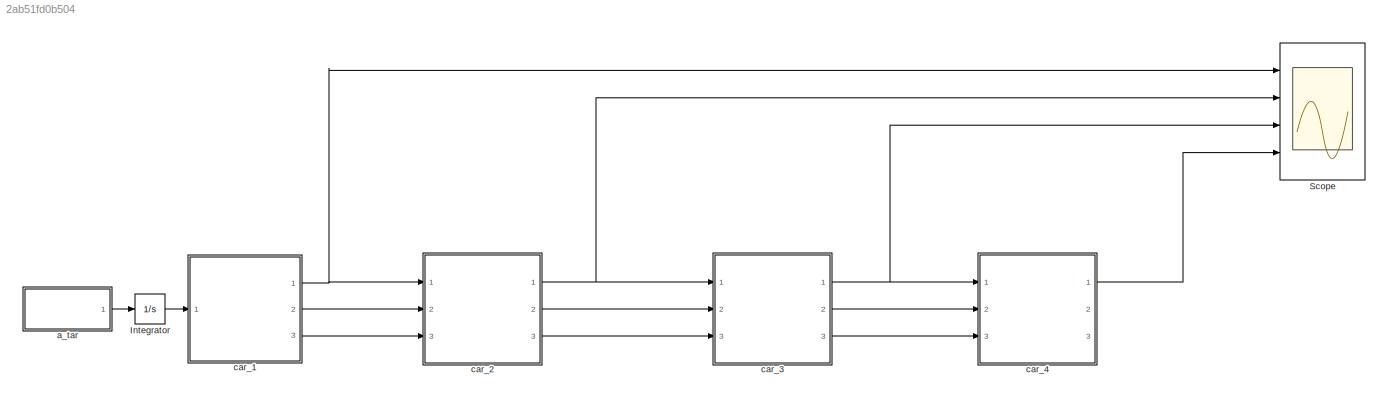
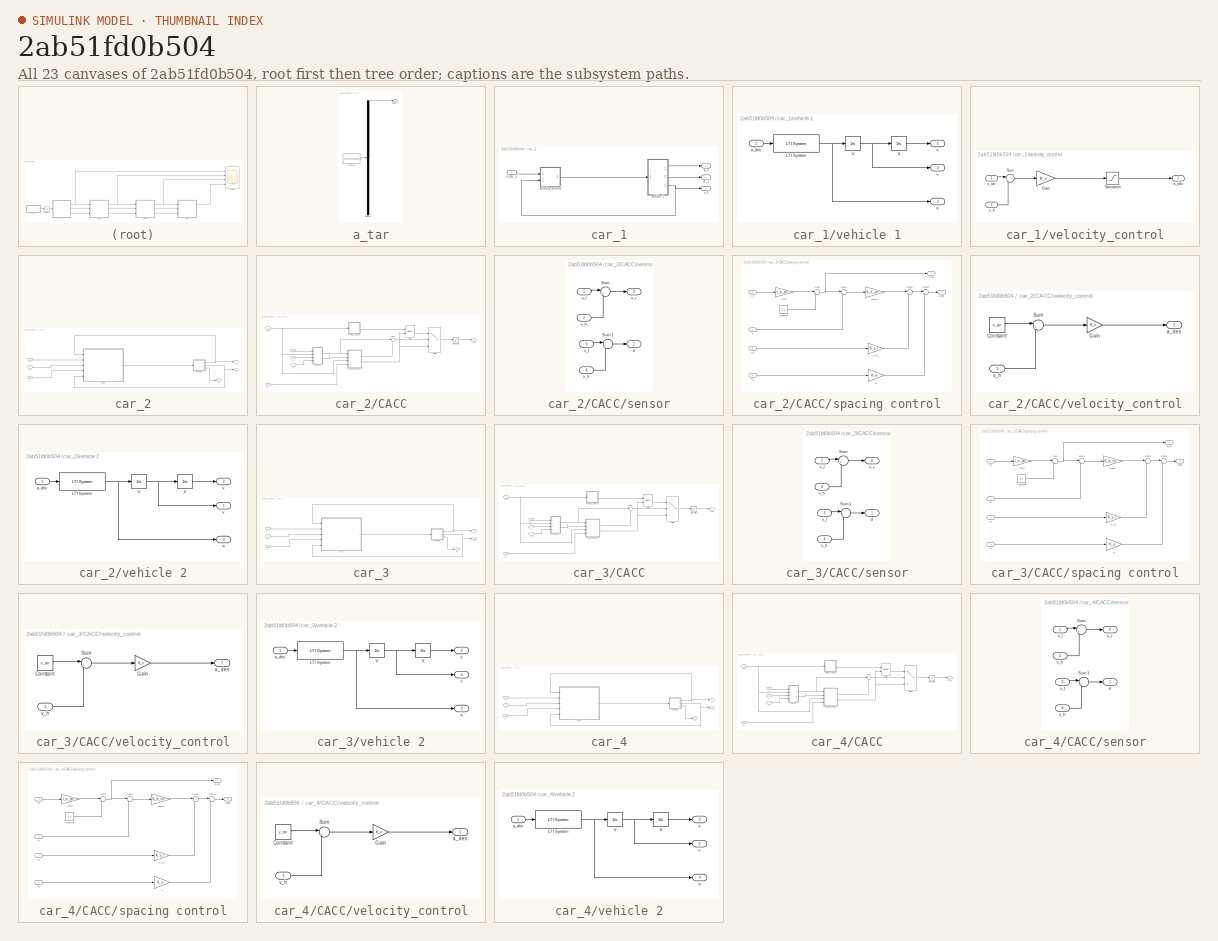
[diagram: thumbnail index - all 23 canvases of the model, root first then tree order]
MODEL slx_2ab51fd0b504
KIND model
CONFIG AbsTol = auto
CONFIG EnableMultiTasking = off
CONFIG FixedStep = auto
CONFIG MaxStep = 0.01
CONFIG MinStep = auto
CONFIG RelTol = 1e-3
CONFIG SampleTimeConstraint = Unconstrained
CONFIG Solver = ode45
CONFIG SolverName = ode45
CONFIG StartTime = 0.0
CONFIG StopTime = 120
BLOCK [Integrator] Integrator
  Ports = [1, 1]
BLOCK [Scope] Scope
  Floating = off
  NumInputPorts = 4
  Ports = [4]
  ScopeSpecificationString = Simulink.scopes.TimeScopeBlockCfg('CurrentConfiguration', extmgr.ConfigurationSet(extmgr.Configuration('Core','General UI',true),extmgr.Configuration('Core','Source UI',true),extmgr.Configuration('Sources','WiredSimulink',true),extmgr.Configuration('Visuals','Time Domain',true,'SerializedDisplays',{struct('MinYLimReal','-26.25','MaxYLimReal','236.25','YLabelReal','','MinYLimMag','0.00000','MaxYLim...<+1365ch>
BLOCK [SubSystem] a_tar
  ClipboardFcn = sigbuilder_block('clipboard');
  CloseFcn = sigbuilder_block('close');
  ContinueFcn = sigbuilder_block('continue');
  CopyFcn = sigbuilder_block('copy');
  DeleteFcn = sigbuilder_block('delete');
  LoadFcn = sigbuilder_block('load');
  MaskHideContents = on
  ModelCloseFcn = sigbuilder_block('modelClose');
  NameChangeFcn = sigbuilder_block('namechange');
  OpenFcn = sigbuilder_block('open',[287 48 550.5 362.5 ]);
  PauseFcn = sigbuilder_block('pause');
  Ports = [0, 1]
  PreSaveFcn = sigbuilder_block('preSave');
  RequestExecContextInheritance = off
  StartFcn = sigbuilder_block('start');
  StopFcn = sigbuilder_block('stop');
  Tag = STV Subsys
BLOCK [Demux] a_tar/Demux
  Outputs = 1
  Ports = [1, 1]
  Tag = STV Demux
BLOCK [FromWorkspace] a_tar/FromWs
  SampleTime = 0
  Tag = STV FromWs
  VariableName = tuvar
  ZeroCross = on
BLOCK [Outport] a_tar/Signal 2
  IconDisplay = Port number
  Tag = STV Outport
BLOCK [SubSystem] car_1
  Ports = [1, 3]
  RequestExecContextInheritance = off
BLOCK [Outport] car_1/a_1
  IconDisplay = Port number
  Port = 3
BLOCK [Outport] car_1/v_1
  IconDisplay = Port number
  Port = 2
BLOCK [Inport] car_1/v_tar_1
  IconDisplay = Port number
BLOCK [SubSystem] car_1/vehicle 1
  Ports = [1, 3]
  RequestExecContextInheritance = off
BLOCK [Reference] car_1/vehicle 1/LTI System  REF=cstblocks/LTI System
  Ports = [1, 1]
  SourceBlock = cstblocks/LTI System
  SourceProductBaseCode = CT
  SourceProductName = Control System Toolbox
  SourceType = LTI Block
BLOCK [Integrator] car_1/vehicle 1/V
  InitialCondition = v1_0
  Ports = [1, 1]
BLOCK [Integrator] car_1/vehicle 1/X
  InitialCondition = x1_0
  Ports = [1, 1]
BLOCK [Outport] car_1/vehicle 1/a
  IconDisplay = Port number
  Port = 2
BLOCK [Inport] car_1/vehicle 1/a_des
  IconDisplay = Port number
BLOCK [Outport] car_1/vehicle 1/v
  IconDisplay = Port number
  Port = 3
BLOCK [Outport] car_1/vehicle 1/x
  IconDisplay = Port number
BLOCK [SubSystem] car_1/velocity_control
  Ports = [2, 1]
  RequestExecContextInheritance = off
BLOCK [Gain] car_1/velocity_control/Gain
  Gain = K_v
  OutDataTypeStr = Inherit: Inherit via internal rule
  ParamDataTypeStr = Inherit: Inherit via internal rule
  SaturateOnIntegerOverflow = off
BLOCK [Saturate] car_1/velocity_control/Saturation
  InputPortMap = u0
  LowerLimit = a_des_min
  Ports = [1, 1]
  UpperLimit = a_des_max
BLOCK [Sum] car_1/velocity_control/Sum
  IconShape = round
  InputSameDT = off
  Inputs = |+-
  OutDataTypeStr = Inherit: Inherit via internal rule
  Ports = [2, 1]
  SaturateOnIntegerOverflow = off
BLOCK [Outport] car_1/velocity_control/a_des
  IconDisplay = Port number
BLOCK [Inport] car_1/velocity_control/v_h
  IconDisplay = Port number
  Port = 2
BLOCK [Inport] car_1/velocity_control/v_tar
  IconDisplay = Port number
BLOCK [Outport] car_1/x_1
  IconDisplay = Port number
BLOCK [SubSystem] car_2
  Ports = [3, 3]
  RequestExecContextInheritance = off
BLOCK [SubSystem] car_2/CACC
  Ports = [5, 1]
  RequestExecContextInheritance = off
BLOCK [MinMax] car_2/CACC/Min
  InputSameDT = off
  Inputs = 2
  Ports = [2, 1]
  SaturateOnIntegerOverflow = off
BLOCK [Saturate] car_2/CACC/Saturation
  InputPortMap = u0
  LowerLimit = a_des_min
  Ports = [1, 1]
  UpperLimit = a_des_max
BLOCK [Sum] car_2/CACC/Sum
  IconShape = round
  InputSameDT = off
  Inputs = |+-
  OutDataTypeStr = Inherit: Inherit via internal rule
  Ports = [2, 1]
  SaturateOnIntegerOverflow = off
BLOCK [Switch] car_2/CACC/Switch
  Criteria = u2 > Threshold
  InputSameDT = off
  SaturateOnIntegerOverflow = off
BLOCK [Outport] car_2/CACC/a_des
  IconDisplay = Port number
BLOCK [Inport] car_2/CACC/a_l
  IconDisplay = Port number
  Port = 4
BLOCK [SubSystem] car_2/CACC/sensor
  Ports = [4, 2]
  RequestExecContextInheritance = off
BLOCK [Sum] car_2/CACC/sensor/Sum
  IconShape = round
  InputSameDT = off
  Inputs = |+-
  OutDataTypeStr = Inherit: Inherit via internal rule
  Ports = [2, 1]
  SaturateOnIntegerOverflow = off
BLOCK [Sum] car_2/CACC/sensor/Sum1
  IconShape = round
  InputSameDT = off
  Inputs = |+-
  OutDataTypeStr = Inherit: Inherit via internal rule
  Ports = [2, 1]
  SaturateOnIntegerOverflow = off
BLOCK [Outport] car_2/CACC/sensor/d
  IconDisplay = Port number
BLOCK [Inport] car_2/CACC/sensor/v_h
  IconDisplay = Port number
  Port = 2
BLOCK [Inport] car_2/CACC/sensor/v_l
  IconDisplay = Port number
BLOCK [Outport] car_2/CACC/sensor/v_r
  IconDisplay = Port number
  Port = 2
BLOCK [Inport] car_2/CACC/sensor/x_h
  IconDisplay = Port number
  Port = 4
BLOCK [Inport] car_2/CACC/sensor/x_l
  IconDisplay = Port number
  Port = 3
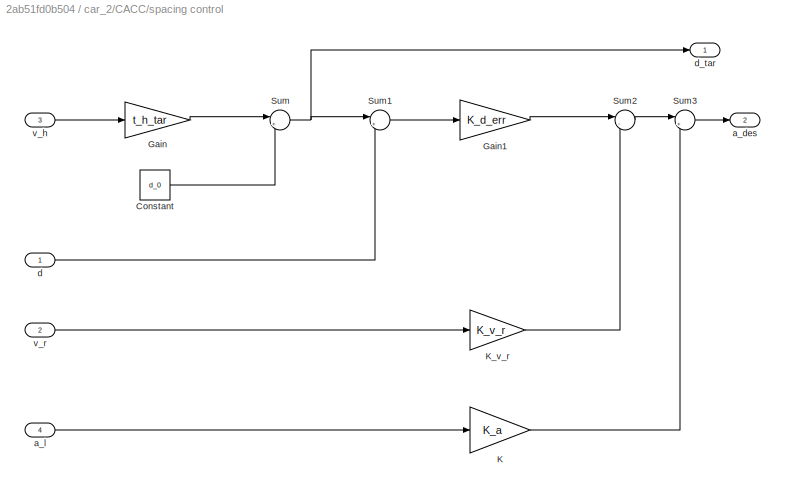
BLOCK [SubSystem] car_2/CACC/spacing control
  Ports = [4, 2]
  RequestExecContextInheritance = off
BLOCK [Constant] car_2/CACC/spacing control/Constant
  Value = d_0
BLOCK [Gain] car_2/CACC/spacing control/Gain
  Gain = t_h_tar
  OutDataTypeStr = Inherit: Inherit via internal rule
  ParamDataTypeStr = Inherit: Inherit via internal rule
  SaturateOnIntegerOverflow = off
BLOCK [Gain] car_2/CACC/spacing control/Gain1
  Gain = K_d_err
  OutDataTypeStr = Inherit: Inherit via internal rule
  ParamDataTypeStr = Inherit: Inherit via internal rule
  SaturateOnIntegerOverflow = off
BLOCK [Gain] car_2/CACC/spacing control/K
  Gain = K_a
  OutDataTypeStr = Inherit: Inherit via internal rule
  ParamDataTypeStr = Inherit: Inherit via internal rule
  SaturateOnIntegerOverflow = off
BLOCK [Gain] car_2/CACC/spacing control/K_v_r
  Gain = K_v_r
  OutDataTypeStr = Inherit: Inherit via internal rule
  ParamDataTypeStr = Inherit: Inherit via internal rule
  SaturateOnIntegerOverflow = off
BLOCK [Sum] car_2/CACC/spacing control/Sum
  IconShape = round
  InputSameDT = off
  Inputs = |++
  OutDataTypeStr = Inherit: Inherit via internal rule
  Ports = [2, 1]
  SaturateOnIntegerOverflow = off
BLOCK [Sum] car_2/CACC/spacing control/Sum1
  IconShape = round
  InputSameDT = off
  Inputs = |+-
  OutDataTypeStr = Inherit: Inherit via internal rule
  Ports = [2, 1]
  SaturateOnIntegerOverflow = off
BLOCK [Sum] car_2/CACC/spacing control/Sum2
  IconShape = round
  InputSameDT = off
  Inputs = |-+
  OutDataTypeStr = Inherit: Inherit via internal rule
  Ports = [2, 1]
  SaturateOnIntegerOverflow = off
BLOCK [Sum] car_2/CACC/spacing control/Sum3
  IconShape = round
  InputSameDT = off
  Inputs = |++
  OutDataTypeStr = Inherit: Inherit via internal rule
  Ports = [2, 1]
  SaturateOnIntegerOverflow = off
BLOCK [Outport] car_2/CACC/spacing control/a_des
  IconDisplay = Port number
  Port = 2
BLOCK [Inport] car_2/CACC/spacing control/a_l
  IconDisplay = Port number
  Port = 4
BLOCK [Inport] car_2/CACC/spacing control/d
  IconDisplay = Port number
BLOCK [Outport] car_2/CACC/spacing control/d_tar
  IconDisplay = Port number
BLOCK [Inport] car_2/CACC/spacing control/v_h
  IconDisplay = Port number
  Port = 3
BLOCK [Inport] car_2/CACC/spacing control/v_r
  IconDisplay = Port number
  Port = 2
BLOCK [Inport] car_2/CACC/v_h
  IconDisplay = Port number
BLOCK [Inport] car_2/CACC/v_l
  IconDisplay = Port number
  Port = 2
BLOCK [SubSystem] car_2/CACC/velocity_control
  Ports = [1, 1]
  RequestExecContextInheritance = off
BLOCK [Constant] car_2/CACC/velocity_control/Constant
  Value = v_tar
BLOCK [Gain] car_2/CACC/velocity_control/Gain
  Gain = K_v
  OutDataTypeStr = Inherit: Inherit via internal rule
  ParamDataTypeStr = Inherit: Inherit via internal rule
  SaturateOnIntegerOverflow = off
BLOCK [Sum] car_2/CACC/velocity_control/Sum
  IconShape = round
  InputSameDT = off
  Inputs = |+-
  OutDataTypeStr = Inherit: Inherit via internal rule
  Ports = [2, 1]
  SaturateOnIntegerOverflow = off
BLOCK [Outport] car_2/CACC/velocity_control/a_des
  IconDisplay = Port number
BLOCK [Inport] car_2/CACC/velocity_control/v_h
  IconDisplay = Port number
BLOCK [Inport] car_2/CACC/x_h
  IconDisplay = Port number
  Port = 5
BLOCK [Inport] car_2/CACC/x_l
  IconDisplay = Port number
  Port = 3
BLOCK [Outport] car_2/a
  IconDisplay = Port number
  Port = 3
BLOCK [Inport] car_2/a_l
  IconDisplay = Port number
  Port = 3
BLOCK [Outport] car_2/v
  IconDisplay = Port number
  Port = 2
BLOCK [Inport] car_2/v_l
  IconDisplay = Port number
  Port = 2
BLOCK [SubSystem] car_2/vehicle 2
  Ports = [1, 3]
  RequestExecContextInheritance = off
BLOCK [Reference] car_2/vehicle 2/LTI System  REF=cstblocks/LTI System
  Ports = [1, 1]
  SourceBlock = cstblocks/LTI System
  SourceProductBaseCode = CT
  SourceProductName = Control System Toolbox
  SourceType = LTI Block
BLOCK [Integrator] car_2/vehicle 2/V
  InitialCondition = v2_0
  Ports = [1, 1]
BLOCK [Integrator] car_2/vehicle 2/X
  InitialCondition = x2_0
  Ports = [1, 1]
BLOCK [Outport] car_2/vehicle 2/a
  IconDisplay = Port number
  Port = 3
BLOCK [Inport] car_2/vehicle 2/a_des
  IconDisplay = Port number
BLOCK [Outport] car_2/vehicle 2/v
  IconDisplay = Port number
BLOCK [Outport] car_2/vehicle 2/x
  IconDisplay = Port number
  Port = 2
BLOCK [Outport] car_2/x
  IconDisplay = Port number
BLOCK [Inport] car_2/x_l
  IconDisplay = Port number
BLOCK [SubSystem] car_3
  Ports = [3, 3]
  RequestExecContextInheritance = off
BLOCK [SubSystem] car_3/CACC
  Ports = [5, 1]
  RequestExecContextInheritance = off
BLOCK [MinMax] car_3/CACC/Min
  InputSameDT = off
  Inputs = 2
  Ports = [2, 1]
  SaturateOnIntegerOverflow = off
BLOCK [Saturate] car_3/CACC/Saturation
  InputPortMap = u0
  LowerLimit = a_des_min
  Ports = [1, 1]
  UpperLimit = a_des_max
BLOCK [Sum] car_3/CACC/Sum
  IconShape = round
  InputSameDT = off
  Inputs = |+-
  OutDataTypeStr = Inherit: Inherit via internal rule
  Ports = [2, 1]
  SaturateOnIntegerOverflow = off
BLOCK [Switch] car_3/CACC/Switch
  Criteria = u2 > Threshold
  InputSameDT = off
  SaturateOnIntegerOverflow = off
BLOCK [Outport] car_3/CACC/a_des
  IconDisplay = Port number
BLOCK [Inport] car_3/CACC/a_l
  IconDisplay = Port number
  Port = 4
BLOCK [SubSystem] car_3/CACC/sensor
  Ports = [4, 2]
  RequestExecContextInheritance = off
BLOCK [Sum] car_3/CACC/sensor/Sum
  IconShape = round
  InputSameDT = off
  Inputs = |+-
  OutDataTypeStr = Inherit: Inherit via internal rule
  Ports = [2, 1]
  SaturateOnIntegerOverflow = off
BLOCK [Sum] car_3/CACC/sensor/Sum1
  IconShape = round
  InputSameDT = off
  Inputs = |+-
  OutDataTypeStr = Inherit: Inherit via internal rule
  Ports = [2, 1]
  SaturateOnIntegerOverflow = off
BLOCK [Outport] car_3/CACC/sensor/d
  IconDisplay = Port number
BLOCK [Inport] car_3/CACC/sensor/v_h
  IconDisplay = Port number
  Port = 2
BLOCK [Inport] car_3/CACC/sensor/v_l
  IconDisplay = Port number
BLOCK [Outport] car_3/CACC/sensor/v_r
  IconDisplay = Port number
  Port = 2
BLOCK [Inport] car_3/CACC/sensor/x_h
  IconDisplay = Port number
  Port = 4
BLOCK [Inport] car_3/CACC/sensor/x_l
  IconDisplay = Port number
  Port = 3
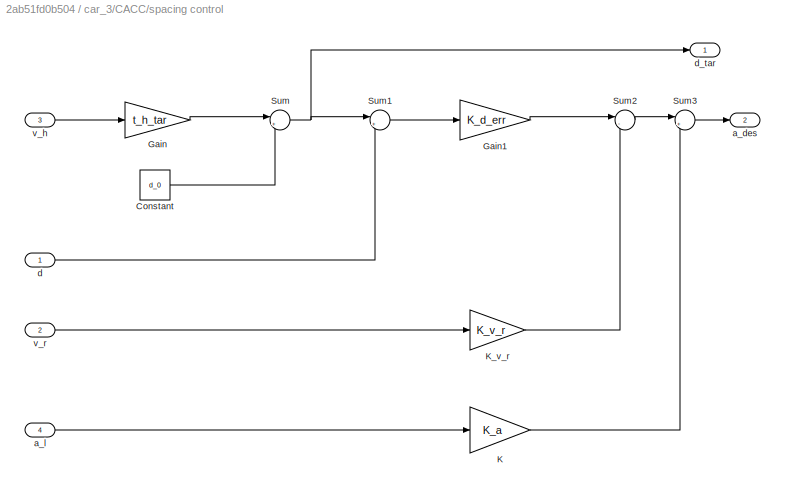
BLOCK [SubSystem] car_3/CACC/spacing control
  Ports = [4, 2]
  RequestExecContextInheritance = off
BLOCK [Constant] car_3/CACC/spacing control/Constant
  Value = d_0
BLOCK [Gain] car_3/CACC/spacing control/Gain
  Gain = t_h_tar
  OutDataTypeStr = Inherit: Inherit via internal rule
  ParamDataTypeStr = Inherit: Inherit via internal rule
  SaturateOnIntegerOverflow = off
BLOCK [Gain] car_3/CACC/spacing control/Gain1
  Gain = K_d_err
  OutDataTypeStr = Inherit: Inherit via internal rule
  ParamDataTypeStr = Inherit: Inherit via internal rule
  SaturateOnIntegerOverflow = off
BLOCK [Gain] car_3/CACC/spacing control/K
  Gain = K_a
  OutDataTypeStr = Inherit: Inherit via internal rule
  ParamDataTypeStr = Inherit: Inherit via internal rule
  SaturateOnIntegerOverflow = off
BLOCK [Gain] car_3/CACC/spacing control/K_v_r
  Gain = K_v_r
  OutDataTypeStr = Inherit: Inherit via internal rule
  ParamDataTypeStr = Inherit: Inherit via internal rule
  SaturateOnIntegerOverflow = off
BLOCK [Sum] car_3/CACC/spacing control/Sum
  IconShape = round
  InputSameDT = off
  Inputs = |++
  OutDataTypeStr = Inherit: Inherit via internal rule
  Ports = [2, 1]
  SaturateOnIntegerOverflow = off
BLOCK [Sum] car_3/CACC/spacing control/Sum1
  IconShape = round
  InputSameDT = off
  Inputs = |+-
  OutDataTypeStr = Inherit: Inherit via internal rule
  Ports = [2, 1]
  SaturateOnIntegerOverflow = off
BLOCK [Sum] car_3/CACC/spacing control/Sum2
  IconShape = round
  InputSameDT = off
  Inputs = |-+
  OutDataTypeStr = Inherit: Inherit via internal rule
  Ports = [2, 1]
  SaturateOnIntegerOverflow = off
BLOCK [Sum] car_3/CACC/spacing control/Sum3
  IconShape = round
  InputSameDT = off
  Inputs = |++
  OutDataTypeStr = Inherit: Inherit via internal rule
  Ports = [2, 1]
  SaturateOnIntegerOverflow = off
BLOCK [Outport] car_3/CACC/spacing control/a_des
  IconDisplay = Port number
  Port = 2
BLOCK [Inport] car_3/CACC/spacing control/a_l
  IconDisplay = Port number
  Port = 4
BLOCK [Inport] car_3/CACC/spacing control/d
  IconDisplay = Port number
BLOCK [Outport] car_3/CACC/spacing control/d_tar
  IconDisplay = Port number
BLOCK [Inport] car_3/CACC/spacing control/v_h
  IconDisplay = Port number
  Port = 3
BLOCK [Inport] car_3/CACC/spacing control/v_r
  IconDisplay = Port number
  Port = 2
BLOCK [Inport] car_3/CACC/v_h
  IconDisplay = Port number
BLOCK [Inport] car_3/CACC/v_l
  IconDisplay = Port number
  Port = 2
BLOCK [SubSystem] car_3/CACC/velocity_control
  Ports = [1, 1]
  RequestExecContextInheritance = off
BLOCK [Constant] car_3/CACC/velocity_control/Constant
  Value = v_tar
BLOCK [Gain] car_3/CACC/velocity_control/Gain
  Gain = K_v
  OutDataTypeStr = Inherit: Inherit via internal rule
  ParamDataTypeStr = Inherit: Inherit via internal rule
  SaturateOnIntegerOverflow = off
BLOCK [Sum] car_3/CACC/velocity_control/Sum
  IconShape = round
  InputSameDT = off
  Inputs = |+-
  OutDataTypeStr = Inherit: Inherit via internal rule
  Ports = [2, 1]
  SaturateOnIntegerOverflow = off
BLOCK [Outport] car_3/CACC/velocity_control/a_des
  IconDisplay = Port number
BLOCK [Inport] car_3/CACC/velocity_control/v_h
  IconDisplay = Port number
BLOCK [Inport] car_3/CACC/x_h
  IconDisplay = Port number
  Port = 5
BLOCK [Inport] car_3/CACC/x_l
  IconDisplay = Port number
  Port = 3
BLOCK [Outport] car_3/a
  IconDisplay = Port number
  Port = 3
BLOCK [Inport] car_3/a_l
  IconDisplay = Port number
  Port = 3
BLOCK [Outport] car_3/v
  IconDisplay = Port number
  Port = 2
BLOCK [Inport] car_3/v_l
  IconDisplay = Port number
  Port = 2
BLOCK [SubSystem] car_3/vehicle 2
  Ports = [1, 3]
  RequestExecContextInheritance = off
BLOCK [Reference] car_3/vehicle 2/LTI System  REF=cstblocks/LTI System
  Ports = [1, 1]
  SourceBlock = cstblocks/LTI System
  SourceProductBaseCode = CT
  SourceProductName = Control System Toolbox
  SourceType = LTI Block
BLOCK [Integrator] car_3/vehicle 2/V
  InitialCondition = v3_0
  Ports = [1, 1]
BLOCK [Integrator] car_3/vehicle 2/X
  InitialCondition = x3_0
  Ports = [1, 1]
BLOCK [Outport] car_3/vehicle 2/a
  IconDisplay = Port number
  Port = 3
BLOCK [Inport] car_3/vehicle 2/a_des
  IconDisplay = Port number
BLOCK [Outport] car_3/vehicle 2/v
  IconDisplay = Port number
BLOCK [Outport] car_3/vehicle 2/x
  IconDisplay = Port number
  Port = 2
BLOCK [Outport] car_3/x
  IconDisplay = Port number
BLOCK [Inport] car_3/x_l
  IconDisplay = Port number
BLOCK [SubSystem] car_4
  Ports = [3, 3]
  RequestExecContextInheritance = off
BLOCK [SubSystem] car_4/CACC
  Ports = [5, 1]
  RequestExecContextInheritance = off
BLOCK [MinMax] car_4/CACC/Min
  InputSameDT = off
  Inputs = 2
  Ports = [2, 1]
  SaturateOnIntegerOverflow = off
BLOCK [Saturate] car_4/CACC/Saturation
  InputPortMap = u0
  LowerLimit = a_des_min
  Ports = [1, 1]
  UpperLimit = a_des_max
BLOCK [Sum] car_4/CACC/Sum
  IconShape = round
  InputSameDT = off
  Inputs = |+-
  OutDataTypeStr = Inherit: Inherit via internal rule
  Ports = [2, 1]
  SaturateOnIntegerOverflow = off
BLOCK [Switch] car_4/CACC/Switch
  Criteria = u2 > Threshold
  InputSameDT = off
  SaturateOnIntegerOverflow = off
BLOCK [Outport] car_4/CACC/a_des
  IconDisplay = Port number
BLOCK [Inport] car_4/CACC/a_l
  IconDisplay = Port number
  Port = 4
BLOCK [SubSystem] car_4/CACC/sensor
  Ports = [4, 2]
  RequestExecContextInheritance = off
BLOCK [Sum] car_4/CACC/sensor/Sum
  IconShape = round
  InputSameDT = off
  Inputs = |+-
  OutDataTypeStr = Inherit: Inherit via internal rule
  Ports = [2, 1]
  SaturateOnIntegerOverflow = off
BLOCK [Sum] car_4/CACC/sensor/Sum1
  IconShape = round
  InputSameDT = off
  Inputs = |+-
  OutDataTypeStr = Inherit: Inherit via internal rule
  Ports = [2, 1]
  SaturateOnIntegerOverflow = off
BLOCK [Outport] car_4/CACC/sensor/d
  IconDisplay = Port number
BLOCK [Inport] car_4/CACC/sensor/v_h
  IconDisplay = Port number
  Port = 2
BLOCK [Inport] car_4/CACC/sensor/v_l
  IconDisplay = Port number
BLOCK [Outport] car_4/CACC/sensor/v_r
  IconDisplay = Port number
  Port = 2
BLOCK [Inport] car_4/CACC/sensor/x_h
  IconDisplay = Port number
  Port = 4
BLOCK [Inport] car_4/CACC/sensor/x_l
  IconDisplay = Port number
  Port = 3
BLOCK [SubSystem] car_4/CACC/spacing control
  Ports = [4, 2]
  RequestExecContextInheritance = off
BLOCK [Constant] car_4/CACC/spacing control/Constant
  Value = d_0
BLOCK [Gain] car_4/CACC/spacing control/Gain
  Gain = t_h_tar
  OutDataTypeStr = Inherit: Inherit via internal rule
  ParamDataTypeStr = Inherit: Inherit via internal rule
  SaturateOnIntegerOverflow = off
BLOCK [Gain] car_4/CACC/spacing control/Gain1
  Gain = K_d_err
  OutDataTypeStr = Inherit: Inherit via internal rule
  ParamDataTypeStr = Inherit: Inherit via internal rule
  SaturateOnIntegerOverflow = off
BLOCK [Gain] car_4/CACC/spacing control/K
  Gain = K_a
  OutDataTypeStr = Inherit: Inherit via internal rule
  ParamDataTypeStr = Inherit: Inherit via internal rule
  SaturateOnIntegerOverflow = off
BLOCK [Gain] car_4/CACC/spacing control/K_v_r
  Gain = K_v_r
  OutDataTypeStr = Inherit: Inherit via internal rule
  ParamDataTypeStr = Inherit: Inherit via internal rule
  SaturateOnIntegerOverflow = off
BLOCK [Sum] car_4/CACC/spacing control/Sum
  IconShape = round
  InputSameDT = off
  Inputs = |++
  OutDataTypeStr = Inherit: Inherit via internal rule
  Ports = [2, 1]
  SaturateOnIntegerOverflow = off
BLOCK [Sum] car_4/CACC/spacing control/Sum1
  IconShape = round
  InputSameDT = off
  Inputs = |+-
  OutDataTypeStr = Inherit: Inherit via internal rule
  Ports = [2, 1]
  SaturateOnIntegerOverflow = off
BLOCK [Sum] car_4/CACC/spacing control/Sum2
  IconShape = round
  InputSameDT = off
  Inputs = |-+
  OutDataTypeStr = Inherit: Inherit via internal rule
  Ports = [2, 1]
  SaturateOnIntegerOverflow = off
BLOCK [Sum] car_4/CACC/spacing control/Sum3
  IconShape = round
  InputSameDT = off
  Inputs = |++
  OutDataTypeStr = Inherit: Inherit via internal rule
  Ports = [2, 1]
  SaturateOnIntegerOverflow = off
BLOCK [Outport] car_4/CACC/spacing control/a_des
  IconDisplay = Port number
  Port = 2
BLOCK [Inport] car_4/CACC/spacing control/a_l
  IconDisplay = Port number
  Port = 4
BLOCK [Inport] car_4/CACC/spacing control/d
  IconDisplay = Port number
BLOCK [Outport] car_4/CACC/spacing control/d_tar
  IconDisplay = Port number
BLOCK [Inport] car_4/CACC/spacing control/v_h
  IconDisplay = Port number
  Port = 3
BLOCK [Inport] car_4/CACC/spacing control/v_r
  IconDisplay = Port number
  Port = 2
BLOCK [Inport] car_4/CACC/v_h
  IconDisplay = Port number
BLOCK [Inport] car_4/CACC/v_l
  IconDisplay = Port number
  Port = 2
BLOCK [SubSystem] car_4/CACC/velocity_control
  Ports = [1, 1]
  RequestExecContextInheritance = off
BLOCK [Constant] car_4/CACC/velocity_control/Constant
  Value = v_tar
BLOCK [Gain] car_4/CACC/velocity_control/Gain
  Gain = K_v
  OutDataTypeStr = Inherit: Inherit via internal rule
  ParamDataTypeStr = Inherit: Inherit via internal rule
  SaturateOnIntegerOverflow = off
BLOCK [Sum] car_4/CACC/velocity_control/Sum
  IconShape = round
  InputSameDT = off
  Inputs = |+-
  OutDataTypeStr = Inherit: Inherit via internal rule
  Ports = [2, 1]
  SaturateOnIntegerOverflow = off
BLOCK [Outport] car_4/CACC/velocity_control/a_des
  IconDisplay = Port number
BLOCK [Inport] car_4/CACC/velocity_control/v_h
  IconDisplay = Port number
BLOCK [Inport] car_4/CACC/x_h
  IconDisplay = Port number
  Port = 5
BLOCK [Inport] car_4/CACC/x_l
  IconDisplay = Port number
  Port = 3
BLOCK [Outport] car_4/a
  IconDisplay = Port number
  Port = 3
BLOCK [Inport] car_4/a_l
  IconDisplay = Port number
  Port = 3
BLOCK [Outport] car_4/v
  IconDisplay = Port number
  Port = 2
BLOCK [Inport] car_4/v_l
  IconDisplay = Port number
  Port = 2
BLOCK [SubSystem] car_4/vehicle 2
  Ports = [1, 3]
  RequestExecContextInheritance = off
BLOCK [Reference] car_4/vehicle 2/LTI System  REF=cstblocks/LTI System
  Ports = [1, 1]
  SourceBlock = cstblocks/LTI System
  SourceProductBaseCode = CT
  SourceProductName = Control System Toolbox
  SourceType = LTI Block
BLOCK [Integrator] car_4/vehicle 2/V
  InitialCondition = v4_0
  Ports = [1, 1]
BLOCK [Integrator] car_4/vehicle 2/X
  InitialCondition = x4_0
  Ports = [1, 1]
BLOCK [Outport] car_4/vehicle 2/a
  IconDisplay = Port number
  Port = 3
BLOCK [Inport] car_4/vehicle 2/a_des
  IconDisplay = Port number
BLOCK [Outport] car_4/vehicle 2/v
  IconDisplay = Port number
BLOCK [Outport] car_4/vehicle 2/x
  IconDisplay = Port number
  Port = 2
BLOCK [Outport] car_4/x
  IconDisplay = Port number
BLOCK [Inport] car_4/x_l
  IconDisplay = Port number
LINE Integrator:1 -> car_1:1
LINE a_tar:1 -> Integrator:1
LINE car_1/v_tar_1:1 -> car_1/velocity_control:1
NET car_1/vehicle 1/LTI System:1 -> car_1/vehicle 1/V:1, car_1/vehicle 1/a:1
NET car_1/vehicle 1/V:1 -> car_1/vehicle 1/X:1, car_1/vehicle 1/v:1
LINE car_1/vehicle 1/X:1 -> car_1/vehicle 1/x:1
LINE car_1/vehicle 1/a_des:1 -> car_1/vehicle 1/LTI System:1
LINE car_1/vehicle 1:1 -> car_1/x_1:1
LINE car_1/vehicle 1:2 -> car_1/a_1:1
NET car_1/vehicle 1:3 -> car_1/v_1:1, car_1/velocity_control:2
LINE car_1/velocity_control/Gain:1 -> car_1/velocity_control/Saturation:1
LINE car_1/velocity_control/Saturation:1 -> car_1/velocity_control/a_des:1
LINE car_1/velocity_control/Sum:1 -> car_1/velocity_control/Gain:1
LINE car_1/velocity_control/v_h:1 -> car_1/velocity_control/Sum:2
LINE car_1/velocity_control/v_tar:1 -> car_1/velocity_control/Sum:1
LINE car_1/velocity_control:1 -> car_1/vehicle 1:1
NET car_1:1 -> Scope:1, car_2:1
LINE car_1:2 -> car_2:2
LINE car_1:3 -> car_2:3
LINE car_2/CACC/Min:1 -> car_2/CACC/Switch:1
LINE car_2/CACC/Saturation:1 -> car_2/CACC/a_des:1
LINE car_2/CACC/Sum:1 -> car_2/CACC/Switch:2
LINE car_2/CACC/Switch:1 -> car_2/CACC/Saturation:1
LINE car_2/CACC/a_l:1 -> car_2/CACC/spacing control:4
LINE car_2/CACC/sensor/Sum1:1 -> car_2/CACC/sensor/d:1
LINE car_2/CACC/sensor/Sum:1 -> car_2/CACC/sensor/v_r:1
LINE car_2/CACC/sensor/v_h:1 -> car_2/CACC/sensor/Sum:2
LINE car_2/CACC/sensor/v_l:1 -> car_2/CACC/sensor/Sum:1
LINE car_2/CACC/sensor/x_h:1 -> car_2/CACC/sensor/Sum1:2
LINE car_2/CACC/sensor/x_l:1 -> car_2/CACC/sensor/Sum1:1
NET car_2/CACC/sensor:1 -> car_2/CACC/Sum:1, car_2/CACC/spacing control:1
LINE car_2/CACC/sensor:2 -> car_2/CACC/spacing control:2
LINE car_2/CACC/spacing control/Constant:1 -> car_2/CACC/spacing control/Sum:2
LINE car_2/CACC/spacing control/Gain1:1 -> car_2/CACC/spacing control/Sum2:1
LINE car_2/CACC/spacing control/Gain:1 -> car_2/CACC/spacing control/Sum:1
LINE car_2/CACC/spacing control/K:1 -> car_2/CACC/spacing control/Sum3:2
LINE car_2/CACC/spacing control/K_v_r:1 -> car_2/CACC/spacing control/Sum2:2
LINE car_2/CACC/spacing control/Sum1:1 -> car_2/CACC/spacing control/Gain1:1
LINE car_2/CACC/spacing control/Sum2:1 -> car_2/CACC/spacing control/Sum3:1
LINE car_2/CACC/spacing control/Sum3:1 -> car_2/CACC/spacing control/a_des:1
NET car_2/CACC/spacing control/Sum:1 -> car_2/CACC/spacing control/Sum1:1, car_2/CACC/spacing control/d_tar:1
LINE car_2/CACC/spacing control/a_l:1 -> car_2/CACC/spacing control/K:1
LINE car_2/CACC/spacing control/d:1 -> car_2/CACC/spacing control/Sum1:2
LINE car_2/CACC/spacing control/v_h:1 -> car_2/CACC/spacing control/Gain:1
LINE car_2/CACC/spacing control/v_r:1 -> car_2/CACC/spacing control/K_v_r:1
LINE car_2/CACC/spacing control:1 -> car_2/CACC/Sum:2
NET car_2/CACC/spacing control:2 -> car_2/CACC/Min:2, car_2/CACC/Switch:3
NET car_2/CACC/v_h:1 -> car_2/CACC/sensor:2, car_2/CACC/spacing control:3, car_2/CACC/velocity_control:1
LINE car_2/CACC/v_l:1 -> car_2/CACC/sensor:1
LINE car_2/CACC/velocity_control/Constant:1 -> car_2/CACC/velocity_control/Sum:1
LINE car_2/CACC/velocity_control/Gain:1 -> car_2/CACC/velocity_control/a_des:1
LINE car_2/CACC/velocity_control/Sum:1 -> car_2/CACC/velocity_control/Gain:1
LINE car_2/CACC/velocity_control/v_h:1 -> car_2/CACC/velocity_control/Sum:2
LINE car_2/CACC/velocity_control:1 -> car_2/CACC/Min:1
LINE car_2/CACC/x_h:1 -> car_2/CACC/sensor:4
LINE car_2/CACC/x_l:1 -> car_2/CACC/sensor:3
LINE car_2/CACC:1 -> car_2/vehicle 2:1
LINE car_2/a_l:1 -> car_2/CACC:4
LINE car_2/v_l:1 -> car_2/CACC:2
NET car_2/vehicle 2/LTI System:1 -> car_2/vehicle 2/V:1, car_2/vehicle 2/a:1
NET car_2/vehicle 2/V:1 -> car_2/vehicle 2/X:1, car_2/vehicle 2/v:1
LINE car_2/vehicle 2/X:1 -> car_2/vehicle 2/x:1
LINE car_2/vehicle 2/a_des:1 -> car_2/vehicle 2/LTI System:1
NET car_2/vehicle 2:1 -> car_2/CACC:1, car_2/v:1
NET car_2/vehicle 2:2 -> car_2/CACC:5, car_2/x:1
LINE car_2/vehicle 2:3 -> car_2/a:1
LINE car_2/x_l:1 -> car_2/CACC:3
NET car_2:1 -> Scope:2, car_3:1
LINE car_2:2 -> car_3:2
LINE car_2:3 -> car_3:3
LINE car_3/CACC/Min:1 -> car_3/CACC/Switch:1
LINE car_3/CACC/Saturation:1 -> car_3/CACC/a_des:1
LINE car_3/CACC/Sum:1 -> car_3/CACC/Switch:2
LINE car_3/CACC/Switch:1 -> car_3/CACC/Saturation:1
LINE car_3/CACC/a_l:1 -> car_3/CACC/spacing control:4
LINE car_3/CACC/sensor/Sum1:1 -> car_3/CACC/sensor/d:1
LINE car_3/CACC/sensor/Sum:1 -> car_3/CACC/sensor/v_r:1
LINE car_3/CACC/sensor/v_h:1 -> car_3/CACC/sensor/Sum:2
LINE car_3/CACC/sensor/v_l:1 -> car_3/CACC/sensor/Sum:1
LINE car_3/CACC/sensor/x_h:1 -> car_3/CACC/sensor/Sum1:2
LINE car_3/CACC/sensor/x_l:1 -> car_3/CACC/sensor/Sum1:1
NET car_3/CACC/sensor:1 -> car_3/CACC/Sum:1, car_3/CACC/spacing control:1
LINE car_3/CACC/sensor:2 -> car_3/CACC/spacing control:2
LINE car_3/CACC/spacing control/Constant:1 -> car_3/CACC/spacing control/Sum:2
LINE car_3/CACC/spacing control/Gain1:1 -> car_3/CACC/spacing control/Sum2:1
LINE car_3/CACC/spacing control/Gain:1 -> car_3/CACC/spacing control/Sum:1
LINE car_3/CACC/spacing control/K:1 -> car_3/CACC/spacing control/Sum3:2
LINE car_3/CACC/spacing control/K_v_r:1 -> car_3/CACC/spacing control/Sum2:2
LINE car_3/CACC/spacing control/Sum1:1 -> car_3/CACC/spacing control/Gain1:1
LINE car_3/CACC/spacing control/Sum2:1 -> car_3/CACC/spacing control/Sum3:1
LINE car_3/CACC/spacing control/Sum3:1 -> car_3/CACC/spacing control/a_des:1
NET car_3/CACC/spacing control/Sum:1 -> car_3/CACC/spacing control/Sum1:1, car_3/CACC/spacing control/d_tar:1
LINE car_3/CACC/spacing control/a_l:1 -> car_3/CACC/spacing control/K:1
LINE car_3/CACC/spacing control/d:1 -> car_3/CACC/spacing control/Sum1:2
LINE car_3/CACC/spacing control/v_h:1 -> car_3/CACC/spacing control/Gain:1
LINE car_3/CACC/spacing control/v_r:1 -> car_3/CACC/spacing control/K_v_r:1
LINE car_3/CACC/spacing control:1 -> car_3/CACC/Sum:2
NET car_3/CACC/spacing control:2 -> car_3/CACC/Min:2, car_3/CACC/Switch:3
NET car_3/CACC/v_h:1 -> car_3/CACC/sensor:2, car_3/CACC/spacing control:3, car_3/CACC/velocity_control:1
LINE car_3/CACC/v_l:1 -> car_3/CACC/sensor:1
LINE car_3/CACC/velocity_control/Constant:1 -> car_3/CACC/velocity_control/Sum:1
LINE car_3/CACC/velocity_control/Gain:1 -> car_3/CACC/velocity_control/a_des:1
LINE car_3/CACC/velocity_control/Sum:1 -> car_3/CACC/velocity_control/Gain:1
LINE car_3/CACC/velocity_control/v_h:1 -> car_3/CACC/velocity_control/Sum:2
LINE car_3/CACC/velocity_control:1 -> car_3/CACC/Min:1
LINE car_3/CACC/x_h:1 -> car_3/CACC/sensor:4
LINE car_3/CACC/x_l:1 -> car_3/CACC/sensor:3
LINE car_3/CACC:1 -> car_3/vehicle 2:1
LINE car_3/a_l:1 -> car_3/CACC:4
LINE car_3/v_l:1 -> car_3/CACC:2
NET car_3/vehicle 2/LTI System:1 -> car_3/vehicle 2/V:1, car_3/vehicle 2/a:1
NET car_3/vehicle 2/V:1 -> car_3/vehicle 2/X:1, car_3/vehicle 2/v:1
LINE car_3/vehicle 2/X:1 -> car_3/vehicle 2/x:1
LINE car_3/vehicle 2/a_des:1 -> car_3/vehicle 2/LTI System:1
NET car_3/vehicle 2:1 -> car_3/CACC:1, car_3/v:1
NET car_3/vehicle 2:2 -> car_3/CACC:5, car_3/x:1
LINE car_3/vehicle 2:3 -> car_3/a:1
LINE car_3/x_l:1 -> car_3/CACC:3
NET car_3:1 -> Scope:3, car_4:1
LINE car_3:2 -> car_4:2
LINE car_3:3 -> car_4:3
LINE car_4/CACC/Min:1 -> car_4/CACC/Switch:1
LINE car_4/CACC/Saturation:1 -> car_4/CACC/a_des:1
LINE car_4/CACC/Sum:1 -> car_4/CACC/Switch:2
LINE car_4/CACC/Switch:1 -> car_4/CACC/Saturation:1
LINE car_4/CACC/a_l:1 -> car_4/CACC/spacing control:4
LINE car_4/CACC/sensor/Sum1:1 -> car_4/CACC/sensor/d:1
LINE car_4/CACC/sensor/Sum:1 -> car_4/CACC/sensor/v_r:1
LINE car_4/CACC/sensor/v_h:1 -> car_4/CACC/sensor/Sum:2
LINE car_4/CACC/sensor/v_l:1 -> car_4/CACC/sensor/Sum:1
LINE car_4/CACC/sensor/x_h:1 -> car_4/CACC/sensor/Sum1:2
LINE car_4/CACC/sensor/x_l:1 -> car_4/CACC/sensor/Sum1:1
NET car_4/CACC/sensor:1 -> car_4/CACC/Sum:1, car_4/CACC/spacing control:1
LINE car_4/CACC/sensor:2 -> car_4/CACC/spacing control:2
LINE car_4/CACC/spacing control/Constant:1 -> car_4/CACC/spacing control/Sum:2
LINE car_4/CACC/spacing control/Gain1:1 -> car_4/CACC/spacing control/Sum2:1
LINE car_4/CACC/spacing control/Gain:1 -> car_4/CACC/spacing control/Sum:1
LINE car_4/CACC/spacing control/K:1 -> car_4/CACC/spacing control/Sum3:2
LINE car_4/CACC/spacing control/K_v_r:1 -> car_4/CACC/spacing control/Sum2:2
LINE car_4/CACC/spacing control/Sum1:1 -> car_4/CACC/spacing control/Gain1:1
LINE car_4/CACC/spacing control/Sum2:1 -> car_4/CACC/spacing control/Sum3:1
LINE car_4/CACC/spacing control/Sum3:1 -> car_4/CACC/spacing control/a_des:1
NET car_4/CACC/spacing control/Sum:1 -> car_4/CACC/spacing control/Sum1:1, car_4/CACC/spacing control/d_tar:1
LINE car_4/CACC/spacing control/a_l:1 -> car_4/CACC/spacing control/K:1
LINE car_4/CACC/spacing control/d:1 -> car_4/CACC/spacing control/Sum1:2
LINE car_4/CACC/spacing control/v_h:1 -> car_4/CACC/spacing control/Gain:1
LINE car_4/CACC/spacing control/v_r:1 -> car_4/CACC/spacing control/K_v_r:1
LINE car_4/CACC/spacing control:1 -> car_4/CACC/Sum:2
NET car_4/CACC/spacing control:2 -> car_4/CACC/Min:2, car_4/CACC/Switch:3
NET car_4/CACC/v_h:1 -> car_4/CACC/sensor:2, car_4/CACC/spacing control:3, car_4/CACC/velocity_control:1
LINE car_4/CACC/v_l:1 -> car_4/CACC/sensor:1
LINE car_4/CACC/velocity_control/Constant:1 -> car_4/CACC/velocity_control/Sum:1
LINE car_4/CACC/velocity_control/Gain:1 -> car_4/CACC/velocity_control/a_des:1
LINE car_4/CACC/velocity_control/Sum:1 -> car_4/CACC/velocity_control/Gain:1
LINE car_4/CACC/velocity_control/v_h:1 -> car_4/CACC/velocity_control/Sum:2
LINE car_4/CACC/velocity_control:1 -> car_4/CACC/Min:1
LINE car_4/CACC/x_h:1 -> car_4/CACC/sensor:4
LINE car_4/CACC/x_l:1 -> car_4/CACC/sensor:3
LINE car_4/CACC:1 -> car_4/vehicle 2:1
LINE car_4/a_l:1 -> car_4/CACC:4
LINE car_4/v_l:1 -> car_4/CACC:2
NET car_4/vehicle 2/LTI System:1 -> car_4/vehicle 2/V:1, car_4/vehicle 2/a:1
NET car_4/vehicle 2/V:1 -> car_4/vehicle 2/X:1, car_4/vehicle 2/v:1
LINE car_4/vehicle 2/X:1 -> car_4/vehicle 2/x:1
LINE car_4/vehicle 2/a_des:1 -> car_4/vehicle 2/LTI System:1
NET car_4/vehicle 2:1 -> car_4/CACC:1, car_4/v:1
NET car_4/vehicle 2:2 -> car_4/CACC:5, car_4/x:1
LINE car_4/vehicle 2:3 -> car_4/a:1
LINE car_4/x_l:1 -> car_4/CACC:3
LINE car_4:1 -> Scope:4
note: NET lines group one-source signal fan-out (src -> all destinations, sorted); 1:1 wires keep LINE
